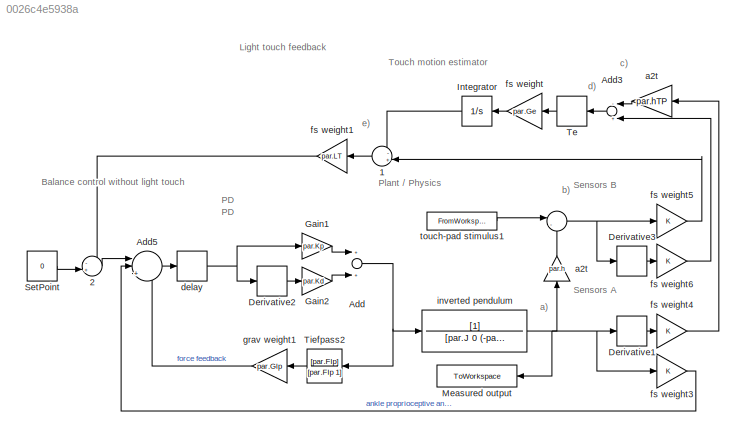
MODEL slx_0026c4e5938a
KIND model
CONFIG AbsTol = auto
CONFIG FixedStep = 1/sr
CONFIG MaxStep = auto
CONFIG MinStep = auto
CONFIG RelTol = 1e-3
CONFIG SampleTimeConstraint = Unconstrained
CONFIG Solver = ode5
CONFIG SolverMode = Auto
CONFIG SolverName = ode5
CONFIG StartTime = 0
CONFIG StopTime = sim_time-1/sr
BLOCK [Sum]  
  IconShape = round
  InputSameDT = off
  Inputs = |-+
  OutDataTypeStr = Inherit: Inherit via internal rule
  Ports = [2, 1]
  SaturateOnIntegerOverflow = off
BLOCK [Sum]  1
  IconShape = round
  InputSameDT = off
  Inputs = -+|
  OutDataTypeStr = Inherit: Inherit via internal rule
  Ports = [2, 1]
  SaturateOnIntegerOverflow = off
BLOCK [Sum]  2
  IconShape = round
  InputSameDT = off
  Inputs = -+|
  OutDataTypeStr = Inherit: Inherit via internal rule
  Ports = [2, 1]
  SaturateOnIntegerOverflow = off
BLOCK [Sum] Add
  InputSameDT = off
  OutDataTypeStr = Inherit: Inherit via internal rule
  Ports = [2, 1]
  SaturateOnIntegerOverflow = off
BLOCK [Sum] Add3
  InputSameDT = off
  Inputs = -+
  OutDataTypeStr = Inherit: Inherit via internal rule
  Ports = [2, 1]
  SaturateOnIntegerOverflow = off
BLOCK [Sum] Add5
  IconShape = round
  InputSameDT = off
  Inputs = ||+-+
  OutDataTypeStr = Inherit: Inherit via internal rule
  Ports = [3, 1]
  SaturateOnIntegerOverflow = off
BLOCK [Derivative] Derivative1
BLOCK [Derivative] Derivative2
BLOCK [Derivative] Derivative3
BLOCK [Gain] Gain1
  Gain = par.Kp
  OutDataTypeStr = Inherit: Inherit via internal rule
  ParamDataTypeStr = Inherit: Inherit via internal rule
  SaturateOnIntegerOverflow = off
BLOCK [Gain] Gain2
  Gain = par.Kd
  OutDataTypeStr = Inherit: Inherit via internal rule
  ParamDataTypeStr = Inherit: Inherit via internal rule
  SaturateOnIntegerOverflow = off
BLOCK [Integrator] Integrator
  Ports = [1, 1]
BLOCK [ToWorkspace] Measured output
  MaxDataPoints = inf
  Ports = [1]
  SampleTime = -1
  VariableName = resp
BLOCK [Constant] SetPoint
  Value = 0
BLOCK [DeadZone] Te
  LinearizeAsGain = off
  LowerValue = -par.te
  SaturateOnIntegerOverflow = off
  UpperValue = par.te
BLOCK [TransferFcn] Tiefpass2
  Denominator = [par.Flp 1]
  Numerator = [par.Flp]
BLOCK [Gain] a2t
  Gain = par.hTP
  OutDataTypeStr = Inherit: Inherit via internal rule
  ParamDataTypeStr = Inherit: Inherit via internal rule
  SaturateOnIntegerOverflow = off
BLOCK [Gain] a2t 
  Gain = par.h
  OutDataTypeStr = Inherit: Inherit via internal rule
  ParamDataTypeStr = Inherit: Inherit via internal rule
  SaturateOnIntegerOverflow = off
BLOCK [TransportDelay] delay
  DelayTime = par.dt
  FixedBuffer = on
  Ports = [1, 1]
BLOCK [Gain] fs weight
  Gain = par.Ge
  OutDataTypeStr = Inherit: Inherit via internal rule
  ParamDataTypeStr = Inherit: Inherit via internal rule
  SaturateOnIntegerOverflow = off
BLOCK [Gain] fs weight1
  Gain = par.LT
  OutDataTypeStr = Inherit: Inherit via internal rule
  ParamDataTypeStr = Inherit: Inherit via internal rule
  SaturateOnIntegerOverflow = off
BLOCK [Gain] fs weight3
  OutDataTypeStr = Inherit: Inherit via internal rule
  ParamDataTypeStr = Inherit: Inherit via internal rule
  SaturateOnIntegerOverflow = off
BLOCK [Gain] fs weight4
  OutDataTypeStr = Inherit: Inherit via internal rule
  ParamDataTypeStr = Inherit: Inherit via internal rule
  SaturateOnIntegerOverflow = off
BLOCK [Gain] fs weight5
  OutDataTypeStr = Inherit: Inherit via internal rule
  ParamDataTypeStr = Inherit: Inherit via internal rule
  SaturateOnIntegerOverflow = off
BLOCK [Gain] fs weight6
  OutDataTypeStr = Inherit: Inherit via internal rule
  ParamDataTypeStr = Inherit: Inherit via internal rule
  SaturateOnIntegerOverflow = off
BLOCK [Gain] grav weight1
  Gain = par.Glp
  OutDataTypeStr = Inherit: Inherit via internal rule
  ParamDataTypeStr = Inherit: Inherit via internal rule
  SaturateOnIntegerOverflow = off
BLOCK [TransferFcn] inverted pendulum
  Denominator = [par.J 0 (-par.mgh)]
BLOCK [FromWorkspace] touch-pad stimulus1
  VariableName = [t,stim]
  ZeroCross = on
ANNOTATION (root): Balance control without light touch
ANNOTATION (root): Light touch feedback
ANNOTATION (root): PD
ANNOTATION (root): Plant / Physics
ANNOTATION (root): Sensors A
ANNOTATION (root): Sensors B
ANNOTATION (root): Touch motion estimator
ANNOTATION (root): a)
ANNOTATION (root): b)
ANNOTATION (root): c)
ANNOTATION (root): d)
ANNOTATION (root): e)
LINE  1:1 -> fs weight1:1
LINE  2:1 -> Add5:1
NET  :1 -> Derivative3:1, fs weight5:1
LINE Add3:1 -> Te:1
LINE Add5:1 -> delay:1
NET Add:1 -> Tiefpass2:1, inverted pendulum:1
LINE Derivative1:1 -> fs weight4:1
LINE Derivative2:1 -> Gain2:1
LINE Derivative3:1 -> fs weight6:1
LINE Gain1:1 -> Add:1
LINE Gain2:1 -> Add:2
LINE Integrator:1 ->  1:1
LINE SetPoint:1 ->  2:2
LINE Te:1 -> fs weight:1
LINE Tiefpass2:1 -> grav weight1:1
LINE a2t :1 ->  :2
LINE a2t:1 -> Add3:1
NET delay:1 -> Derivative2:1, Gain1:1
LINE fs weight1:1 ->  2:1
LINE fs weight3:1 -> Add5:2
LINE fs weight4:1 -> a2t:1
LINE fs weight5:1 ->  1:2
LINE fs weight6:1 -> Add3:2
LINE fs weight:1 -> Integrator:1
LINE grav weight1:1 -> Add5:3
NET inverted pendulum:1 -> Derivative1:1, Measured output:1, a2t :1, fs weight3:1
LINE touch-pad stimulus1:1 ->  :1
note: NET lines group one-source signal fan-out (src -> all destinations, sorted); 1:1 wires keep LINE
